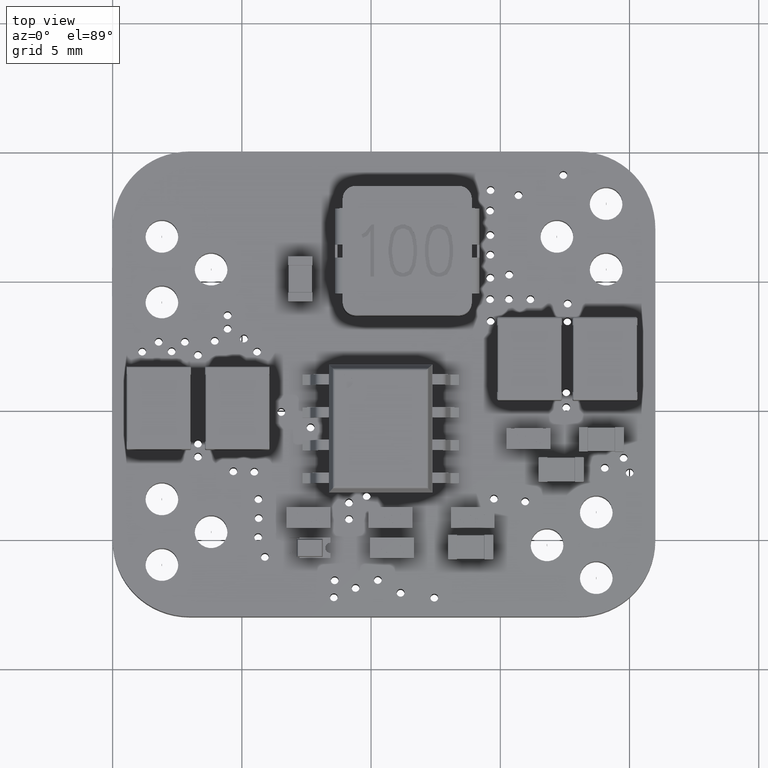
[diagram: clean part render]
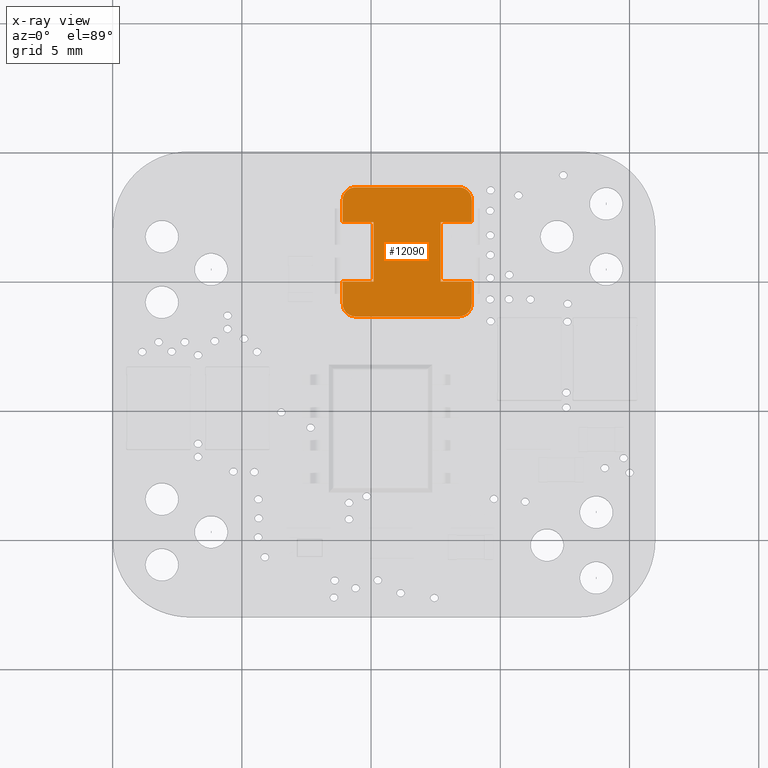
[diagram: x-ray — body ghosted, one internal face saturated and labeled with its STEP entity id]
A machine part, top view, then the same camera in x-ray: the body is ghosted and one INTERNAL B-rep face — a face not visible from any outside direction — is saturated and labeled: STEP entity #12090.
In plain terms, the highlighted planar face has unit normal (0, -0, 1).
Its self-contained STEP definition (entity closure, byte-faithful):
#11181 = VERTEX_POINT('',#11182);
#11182 = CARTESIAN_POINT('',(-5.421010862428E-17,0.,-0.5));
#11188 = EDGE_CURVE('',#11181,#11189,#11191,.T.);
#11189 = VERTEX_POINT('',#11190);
#11190 = CARTESIAN_POINT('',(-1.010476424756E-16,-8.673617379884E-16,
    -1.35));
#11191 = LINE('',#11192,#11193);
#11192 = CARTESIAN_POINT('',(0.,0.,-2.5));
#11193 = VECTOR('',#11194,1.);
#11194 = DIRECTION('',(-0.,0.,-1.));
#11197 = VERTEX_POINT('',#11198);
#11198 = CARTESIAN_POINT('',(-1.234038912723E-15,0.,-3.65));
#11204 = EDGE_CURVE('',#11197,#11205,#11207,.T.);
#11205 = VERTEX_POINT('',#11206);
#11206 = CARTESIAN_POINT('',(-1.355252715607E-15,0.,-4.5));
#11207 = LINE('',#11208,#11209);
#11208 = CARTESIAN_POINT('',(-1.301042606983E-15,0.,-2.5));
#11209 = VECTOR('',#11210,1.);
#11210 = DIRECTION('',(-0.,0.,-1.));
#11229 = VERTEX_POINT('',#11230);
#11230 = CARTESIAN_POINT('',(-4.5,0.,9.73613550892E-16));
#11236 = EDGE_CURVE('',#11229,#11237,#11239,.T.);
#11237 = VERTEX_POINT('',#11238);
#11238 = CARTESIAN_POINT('',(-0.5,0.,1.235990476633E-16));
#11239 = LINE('',#11240,#11241);
#11240 = CARTESIAN_POINT('',(-4.5,0.,9.71445146547E-16));
#11241 = VECTOR('',#11242,1.);
#11242 = DIRECTION('',(1.,0.,-2.081668171172E-16));
#11327 = VERTEX_POINT('',#11328);
#11328 = CARTESIAN_POINT('',(-5.,0.,-4.5));
#11334 = EDGE_CURVE('',#11327,#11335,#11337,.T.);
#11335 = VERTEX_POINT('',#11336);
#11336 = CARTESIAN_POINT('',(-5.,0.,-3.65));
#11337 = LINE('',#11338,#11339);
#11338 = CARTESIAN_POINT('',(-5.,0.,-4.5));
#11339 = VECTOR('',#11340,1.);
#11340 = DIRECTION('',(8.326672684689E-16,0.,1.));
#11343 = VERTEX_POINT('',#11344);
#11344 = CARTESIAN_POINT('',(-5.,0.,-1.35));
#11350 = EDGE_CURVE('',#11343,#11351,#11353,.T.);
#11351 = VERTEX_POINT('',#11352);
#11352 = CARTESIAN_POINT('',(-5.,0.,-0.5));
#11353 = LINE('',#11354,#11355);
#11354 = CARTESIAN_POINT('',(-5.,0.,-4.5));
#11355 = VECTOR('',#11356,1.);
#11356 = DIRECTION('',(8.326672684689E-16,0.,1.));
#11375 = VERTEX_POINT('',#11376);
#11376 = CARTESIAN_POINT('',(-0.5,0.,-5.));
#11382 = EDGE_CURVE('',#11375,#11383,#11385,.T.);
#11383 = VERTEX_POINT('',#11384);
#11384 = CARTESIAN_POINT('',(-4.5,0.,-5.));
#11385 = LINE('',#11386,#11387);
#11386 = CARTESIAN_POINT('',(-0.5,0.,-5.));
#11387 = VECTOR('',#11388,1.);
#11388 = DIRECTION('',(-1.,0.,4.163336342344E-16));
#12011 = EDGE_CURVE('',#11237,#11181,#12012,.T.);
#12012 = CIRCLE('',#12013,0.5);
#12013 = AXIS2_PLACEMENT_3D('',#12014,#12015,#12016);
#12014 = CARTESIAN_POINT('',(-0.5,0.,-0.5));
#12015 = DIRECTION('',(0.,1.,0.));
#12016 = DIRECTION('',(0.,-0.,1.));
#12029 = EDGE_CURVE('',#11205,#11375,#12030,.T.);
#12030 = CIRCLE('',#12031,0.5);
#12031 = AXIS2_PLACEMENT_3D('',#12032,#12033,#12034);
#12032 = CARTESIAN_POINT('',(-0.5,0.,-4.5));
#12033 = DIRECTION('',(0.,1.,0.));
#12034 = DIRECTION('',(0.,-0.,1.));
#12078 = EDGE_CURVE('',#11351,#11229,#12079,.T.);
#12079 = CIRCLE('',#12080,0.5);
#12080 = AXIS2_PLACEMENT_3D('',#12081,#12082,#12083);
#12081 = CARTESIAN_POINT('',(-4.5,0.,-0.5));
#12082 = DIRECTION('',(0.,1.,0.));
#12083 = DIRECTION('',(0.,-0.,1.));
#12090 = ADVANCED_FACE('',(#12091),#12153,.F.);
#12091 = FACE_BOUND('',#12092,.T.);
#12092 = EDGE_LOOP('',(#12093,#12103,#12109,#12110,#12111,#12112,#12113,
    #12114,#12122,#12130,#12136,#12137,#12144,#12145,#12146,#12147));
#12093 = ORIENTED_EDGE('',*,*,#12094,.F.);
#12094 = EDGE_CURVE('',#12095,#12097,#12099,.T.);
#12095 = VERTEX_POINT('',#12096);
#12096 = CARTESIAN_POINT('',(-1.2,-8.605854744104E-16,-1.35));
#12097 = VERTEX_POINT('',#12098);
#12098 = CARTESIAN_POINT('',(-1.2,-2.564815764286E-15,-3.65));
#12099 = LINE('',#12100,#12101);
#12100 = CARTESIAN_POINT('',(-1.2,0.,-2.5));
#12101 = VECTOR('',#12102,1.);
#12102 = DIRECTION('',(-0.,0.,-1.));
#12103 = ORIENTED_EDGE('',*,*,#12104,.F.);
#12104 = EDGE_CURVE('',#11189,#12095,#12105,.T.);
#12105 = LINE('',#12106,#12107);
#12106 = CARTESIAN_POINT('',(-2.5,0.,-1.35));
#12107 = VECTOR('',#12108,1.);
#12108 = DIRECTION('',(-1.,-0.,0.));
#12109 = ORIENTED_EDGE('',*,*,#11188,.F.);
#12110 = ORIENTED_EDGE('',*,*,#12011,.F.);
#12111 = ORIENTED_EDGE('',*,*,#11236,.F.);
#12112 = ORIENTED_EDGE('',*,*,#12078,.F.);
#12113 = ORIENTED_EDGE('',*,*,#11350,.F.);
#12114 = ORIENTED_EDGE('',*,*,#12115,.F.);
#12115 = EDGE_CURVE('',#12116,#11343,#12118,.T.);
#12116 = VERTEX_POINT('',#12117);
#12117 = CARTESIAN_POINT('',(-3.8,0.,-1.35));
#12118 = LINE('',#12119,#12120);
#12119 = CARTESIAN_POINT('',(-2.5,0.,-1.35));
#12120 = VECTOR('',#12121,1.);
#12121 = DIRECTION('',(-1.,-0.,0.));
#12122 = ORIENTED_EDGE('',*,*,#12123,.F.);
#12123 = EDGE_CURVE('',#12124,#12116,#12126,.T.);
#12124 = VERTEX_POINT('',#12125);
#12125 = CARTESIAN_POINT('',(-3.8,0.,-3.65));
#12126 = LINE('',#12127,#12128);
#12127 = CARTESIAN_POINT('',(-3.8,0.,-2.5));
#12128 = VECTOR('',#12129,1.);
#12129 = DIRECTION('',(0.,-0.,1.));
#12130 = ORIENTED_EDGE('',*,*,#12131,.F.);
#12131 = EDGE_CURVE('',#11335,#12124,#12132,.T.);
#12132 = LINE('',#12133,#12134);
#12133 = CARTESIAN_POINT('',(-2.5,0.,-3.65));
#12134 = VECTOR('',#12135,1.);
#12135 = DIRECTION('',(1.,0.,-0.));
#12136 = ORIENTED_EDGE('',*,*,#11334,.F.);
#12137 = ORIENTED_EDGE('',*,*,#12138,.F.);
#12138 = EDGE_CURVE('',#11383,#11327,#12139,.T.);
#12139 = CIRCLE('',#12140,0.5);
#12140 = AXIS2_PLACEMENT_3D('',#12141,#12142,#12143);
#12141 = CARTESIAN_POINT('',(-4.5,0.,-4.5));
#12142 = DIRECTION('',(0.,1.,0.));
#12143 = DIRECTION('',(0.,-0.,1.));
#12144 = ORIENTED_EDGE('',*,*,#11382,.F.);
#12145 = ORIENTED_EDGE('',*,*,#12029,.F.);
#12146 = ORIENTED_EDGE('',*,*,#11204,.F.);
#12147 = ORIENTED_EDGE('',*,*,#12148,.F.);
#12148 = EDGE_CURVE('',#12097,#11197,#12149,.T.);
#12149 = LINE('',#12150,#12151);
#12150 = CARTESIAN_POINT('',(-2.5,0.,-3.65));
#12151 = VECTOR('',#12152,1.);
#12152 = DIRECTION('',(1.,0.,-0.));
#12153 = PLANE('',#12154);
#12154 = AXIS2_PLACEMENT_3D('',#12155,#12156,#12157);
#12155 = CARTESIAN_POINT('',(-2.5,0.,-2.5));
#12156 = DIRECTION('',(0.,1.,0.));
#12157 = DIRECTION('',(0.,-0.,1.));